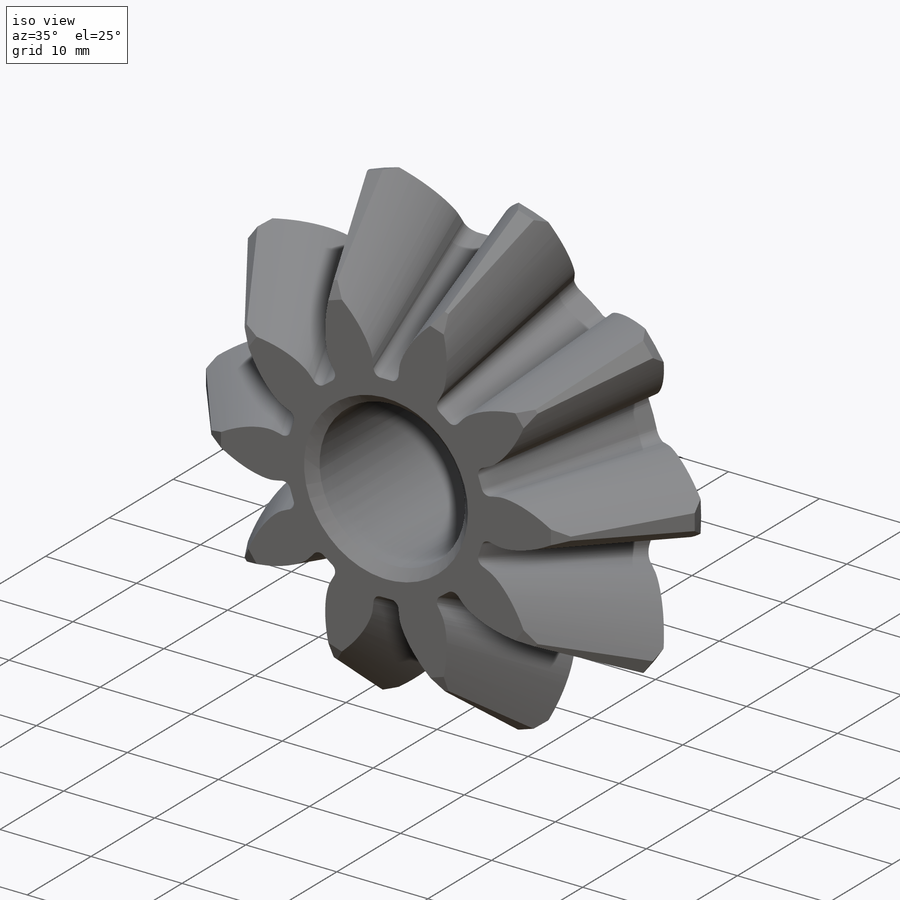
[diagram: iso view]
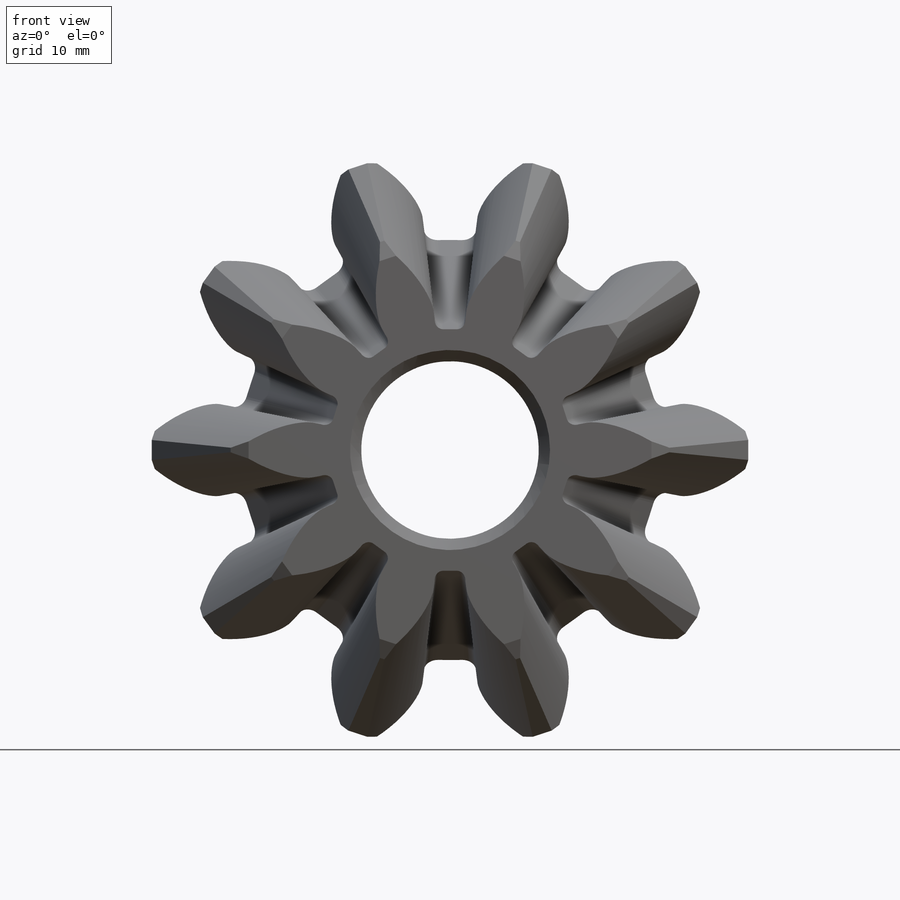
[diagram: front view]
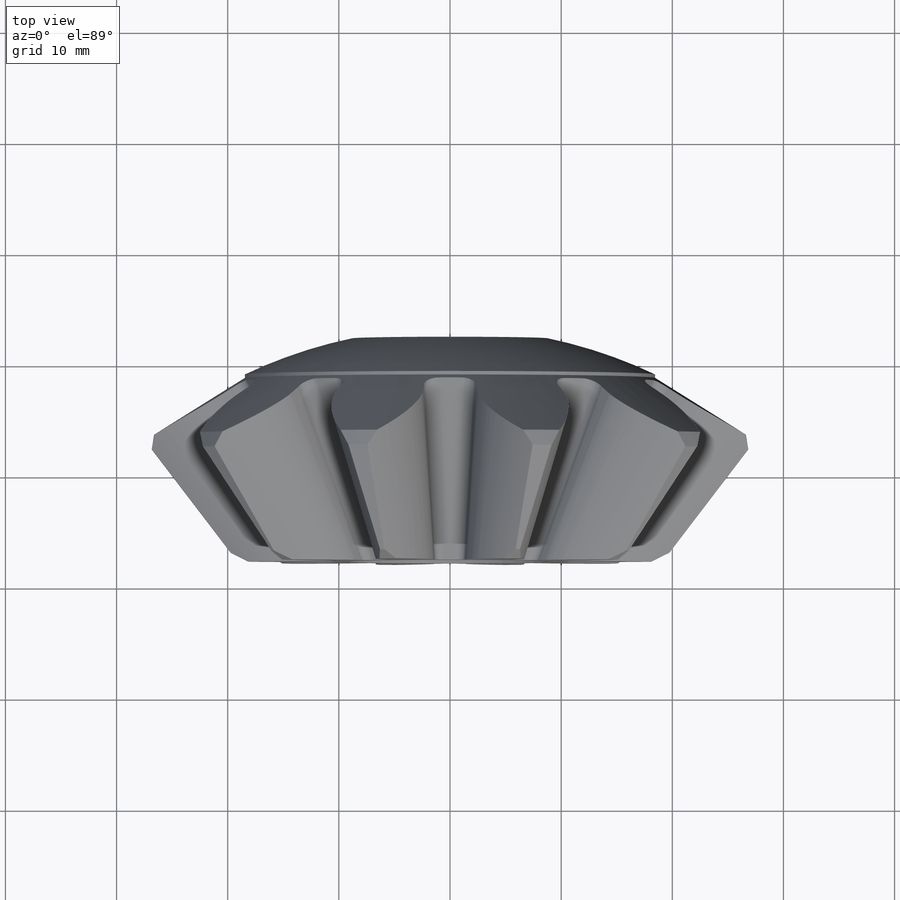
[diagram: top view]
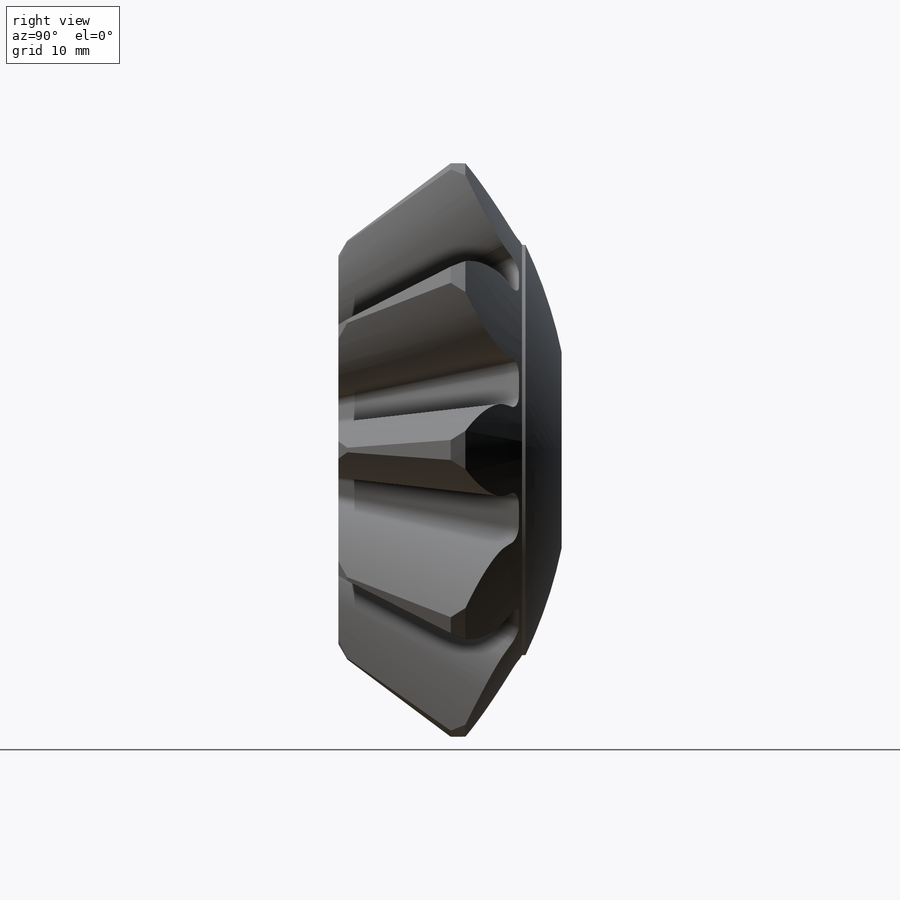
[diagram: right view]
SOLIDWORKS PART (.sldprt)
format: sldprt  version: not decoded by parser v0  size: 529,408 bytes
history: native  units: mm
features: plane x5, sketch x4, material x1, revolve x1, pattern_circular x1, cut_extrude x1, chamfer x1 + 1 further entry (+8 scaffold rows collapsed)
feature tree (23):
  scaffold x8  (default folders/planes/origin — collapsed)
  material  "Materiał <nieokreślony>"
  plane  "Płaszczyzna przednia"
  plane  "Płaszczyzna górna"
  plane  "Płaszczyzna prawa"
  sketch  "Bevel-BaseSketch"  dims[c1.Hub Mounting=~38.52478mm c1.Hub Surface=~18.46098mm c1.Back Cone=~10.613259mm c1.Face Width=~13.715137mm c1.Body Width=~16.523042mm c1.Face Angle=~37.382666deg c1.D1=2.0mm c2.D1=~1.719734mm c3.D1=~96.401757deg c4.D1=~8.576027mm c5.D1=~96.401757deg c6.D1=0.5mm c6.D2=1.0mm c7.D2=135.0deg c8.D2=~27.461006mm]
  revolve  "Obrót1"  Angle=360deg
  "Oś2"
  plane  "PlaneAtAngle"
  plane  "PlaneAtOffset"  Offset=42.453259mm
  sketch  "Tooth-Sketch; Clearance: 0,0000mm"
  sketch  "Apex"
  pattern_circular  "Szyk kołowy2"  Count=10 Angle=36deg
  sketch  "Szkic1"  dims[D1=16.0mm]
  cut_extrude  "Wytnij-wyciągnięcie1"  [1 undecoded]
  chamfer  "Sfazowanie1"  Distance=1mm Angle=45deg
decode coverage: 5 of 8 modeling features carry decoded parameters; 1 rows unclassified (native names shown)
note: ~ marks probable driven/reference dimensions
note: 1 parameter value undecoded
note: suppression state not decoded; provenance and decode notes live in map.json
